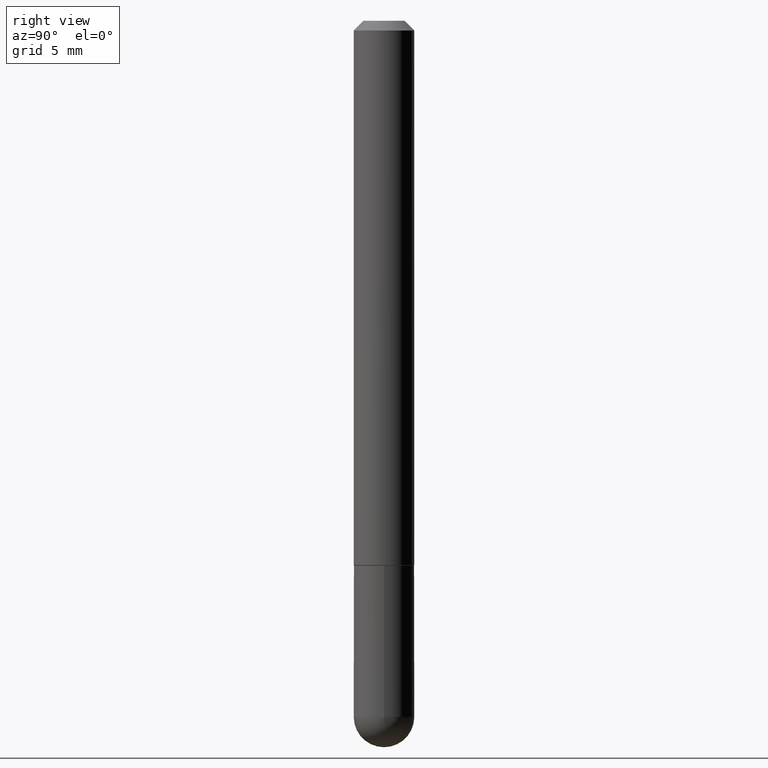
[diagram: clean part render]
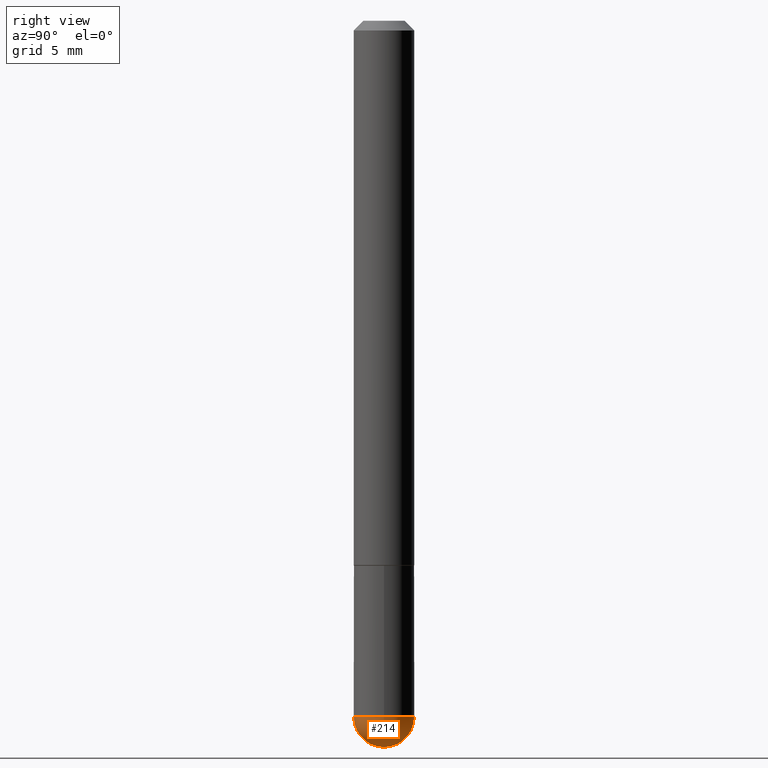
[diagram: same view with one face highlighted and labeled with its STEP entity id]
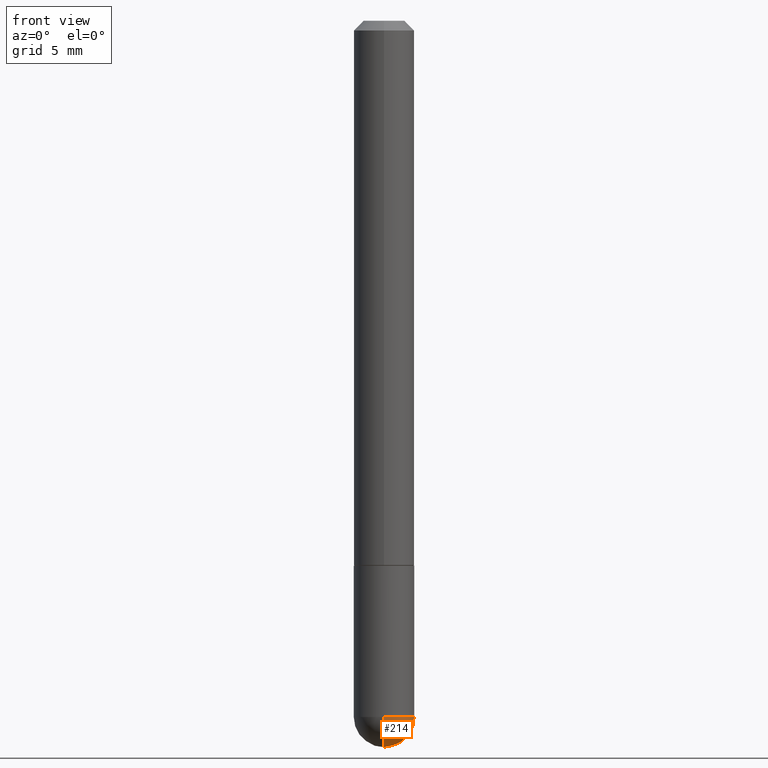
[diagram: same view with one face highlighted and labeled with its STEP entity id]
A machine part, right view. The second image highlights one B-rep face of the part: STEP entity #214.
A second angle (front view) of the same face is appended — the face is thin or edge-on in the first view.
In plain terms, the highlighted spherical surface has radius 1.5875 mm.
Its self-contained STEP definition (entity closure, byte-faithful):
#6 = ORIENTED_EDGE ( 'NONE', *, *, #407, .F. ) ;
#7 = VERTEX_POINT ( 'NONE', #224 ) ;
#9 = AXIS2_PLACEMENT_3D ( 'NONE', #405, #217, #347 ) ;
#10 = CIRCLE ( 'NONE', #246, 0.06250000000000031919 ) ;
#32 = CARTESIAN_POINT ( 'NONE',  ( 4.364351673554260835E-16, 0.06249999999999487910, -1.437500000000000444 ) ) ;
#58 = AXIS2_PLACEMENT_3D ( 'NONE', #279, #209, #85 ) ;
#61 = DIRECTION ( 'NONE',  ( 6.982962677686265922E-15, 1.000000000000000000, -4.370956789862798273E-15 ) ) ;
#85 = DIRECTION ( 'NONE',  ( 1.000000000000000000, -6.982962677686268288E-15, 0.000000000000000000 ) ) ;
#86 = DIRECTION ( 'NONE',  ( -1.000000000000000000, 6.982962677686265922E-15, -4.883557194083112901E-29 ) ) ;
#94 = EDGE_CURVE ( 'NONE', #132, #299, #393, .T. ) ;
#102 = ORIENTED_EDGE ( 'NONE', *, *, #162, .T. ) ;
#105 = EDGE_CURVE ( 'NONE', #7, #132, #191, .T. ) ;
#112 = DIRECTION ( 'NONE',  ( 1.000000000000000000, -6.982962677686268288E-15, 0.000000000000000000 ) ) ;
#113 = CARTESIAN_POINT ( 'NONE',  ( 3.184241630977248732E-29, -5.493186792727072638E-15, -1.437500000000000222 ) ) ;
#123 = CARTESIAN_POINT ( 'NONE',  ( 3.515361408891134418E-29, -5.019004424587023131E-15, -1.437500000000000222 ) ) ;
#124 = FACE_OUTER_BOUND ( 'NONE', #225, .T. ) ;
#125 = CARTESIAN_POINT ( 'NONE',  ( 0.06249999999999995143, -4.909895632748173241E-15, -1.437500000000000222 ) ) ;
#126 = SPHERICAL_SURFACE ( 'NONE', #190, 0.06250000000000031919 ) ;
#132 = VERTEX_POINT ( 'NONE', #125 ) ;
#133 = CIRCLE ( 'NONE', #9, 0.06250000000000031919 ) ;
#145 = DIRECTION ( 'NONE',  ( -2.445468806185136597E-29, 3.491481338843145583E-15, 1.000000000000000000 ) ) ;
#162 = EDGE_CURVE ( 'NONE', #358, #299, #133, .T. ) ;
#175 = CARTESIAN_POINT ( 'NONE',  ( 3.339755826017506129E-29, -5.707577355157435366E-15, -1.500000000000000444 ) ) ;
#190 = AXIS2_PLACEMENT_3D ( 'NONE', #266, #86, #61 ) ;
#191 = CIRCLE ( 'NONE', #58, 0.06249999999999995143 ) ;
#209 = DIRECTION ( 'NONE',  ( -2.445468806185136597E-29, 3.491481338843145583E-15, 1.000000000000000000 ) ) ;
#214 = ADVANCED_FACE ( 'NONE', ( #124 ), #126, .T. ) ;
#217 = DIRECTION ( 'NONE',  ( 1.000000000000000000, -6.982962677686265922E-15, 4.883557194083112340E-29 ) ) ;
#224 = CARTESIAN_POINT ( 'NONE',  ( -4.440892098500299770E-16, -0.06250000000000539846, -1.437500000000000000 ) ) ;
#225 = EDGE_LOOP ( 'NONE', ( #6, #102, #261, #321 ) ) ;
#246 = AXIS2_PLACEMENT_3D ( 'NONE', #113, #339, #268 ) ;
#261 = ORIENTED_EDGE ( 'NONE', *, *, #94, .F. ) ;
#266 = CARTESIAN_POINT ( 'NONE',  ( 3.184241630977248732E-29, -5.493186792727072638E-15, -1.437500000000000222 ) ) ;
#268 = DIRECTION ( 'NONE',  ( -7.105427357601001859E-15, -1.000000000000000000, 0.000000000000000000 ) ) ;
#273 = AXIS2_PLACEMENT_3D ( 'NONE', #123, #145, #112 ) ;
#279 = CARTESIAN_POINT ( 'NONE',  ( 3.515361408891134418E-29, -5.019004424587023131E-15, -1.437500000000000222 ) ) ;
#299 = VERTEX_POINT ( 'NONE', #32 ) ;
#321 = ORIENTED_EDGE ( 'NONE', *, *, #105, .F. ) ;
#339 = DIRECTION ( 'NONE',  ( -1.000000000000000000, 7.105427357601001070E-15, -4.926315508542082329E-29 ) ) ;
#347 = DIRECTION ( 'NONE',  ( 6.982962677686265922E-15, 1.000000000000000000, 0.000000000000000000 ) ) ;
#358 = VERTEX_POINT ( 'NONE', #175 ) ;
#393 = CIRCLE ( 'NONE', #273, 0.06249999999999995143 ) ;
#405 = CARTESIAN_POINT ( 'NONE',  ( 3.184241630977248732E-29, -5.493186792727072638E-15, -1.437500000000000222 ) ) ;
#407 = EDGE_CURVE ( 'NONE', #358, #7, #10, .T. ) ;